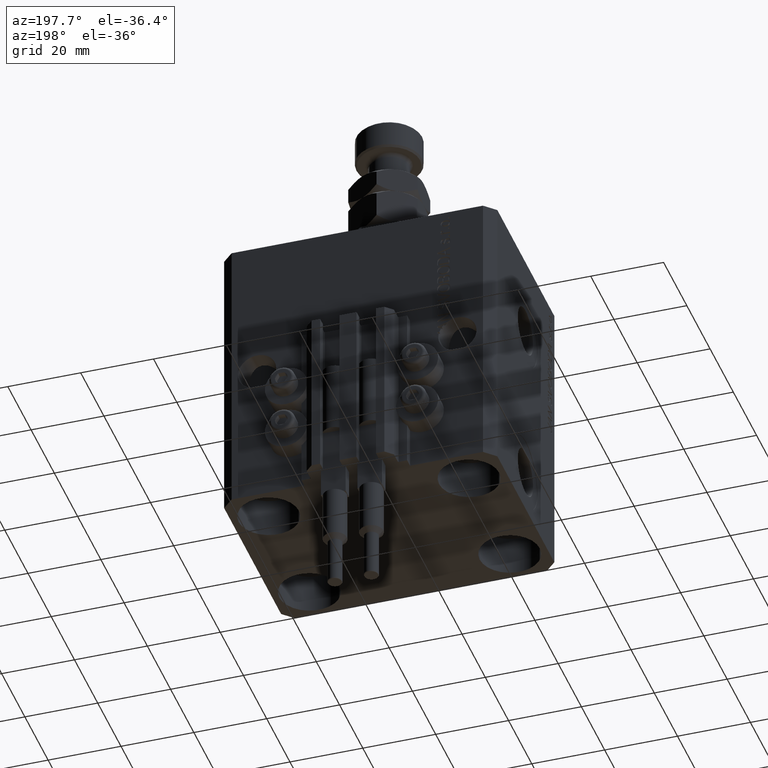
[diagram: clean part render]
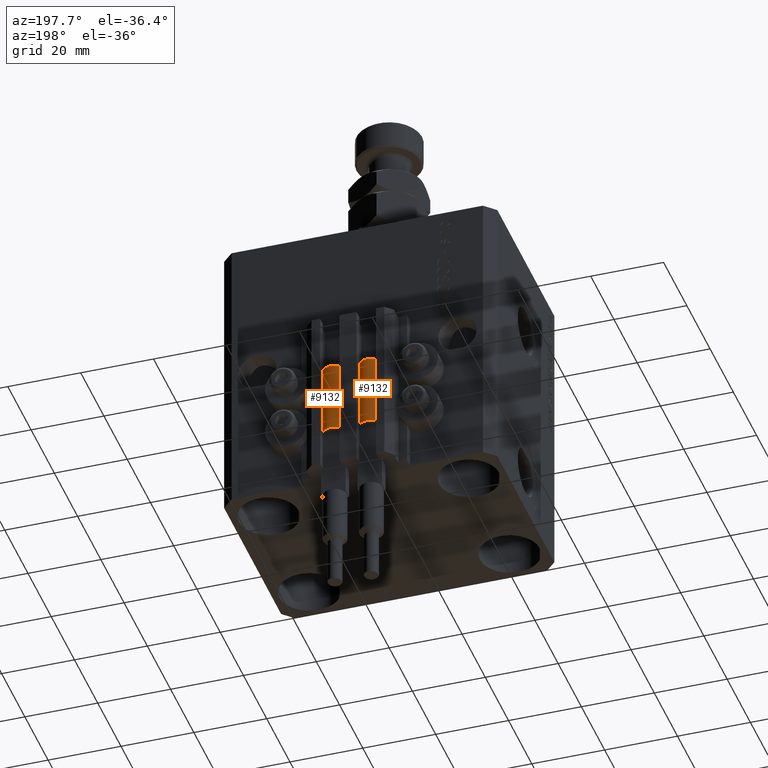
[diagram: same view with one multi-face feature highlighted, each face labeled with its STEP entity id]
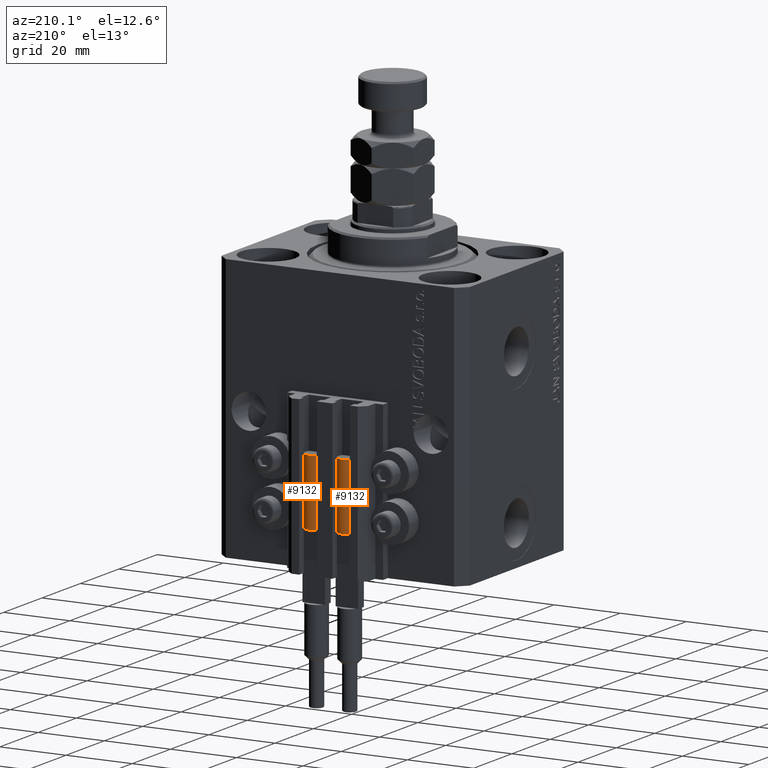
[diagram: same view with one multi-face feature highlighted, each face labeled with its STEP entity id]
A machine part, auxiliary view. The highlighted faces form ONE feature: a constant-radius fillet chain: 2 tangent blend faces with common blend radius 3.4 mm. The faces share edges in the B-rep.
A second angle (auxiliary view) of the same feature is appended — it is thin or edge-on in the first view.
Their STEP definitions:
[1] entity #9132 (Cylinder):
#56 = AXIS2_PLACEMENT_3D ( 'NONE', #34535, #4121, #15334 ) ;
#496 = CIRCLE ( 'NONE', #44956, 3.400000000000000355 ) ;
#931 = ORIENTED_EDGE ( 'NONE', *, *, #42900, .F. ) ;
#1344 = DIRECTION ( 'NONE',  ( -0.000000000000000000, -0.000000000000000000, -1.000000000000000000 ) ) ;
#3049 = VECTOR ( 'NONE', #1344, 1000.000000000000000 ) ;
#3705 = VERTEX_POINT ( 'NONE', #28046 ) ;
#4121 = DIRECTION ( 'NONE',  ( 0.000000000000000000, 0.000000000000000000, 1.000000000000000000 ) ) ;
#4370 = LINE ( 'NONE', #23068, #12833 ) ;
#6586 = DIRECTION ( 'NONE',  ( 0.000000000000000000, 0.000000000000000000, 1.000000000000000000 ) ) ;
#7961 = DIRECTION ( 'NONE',  ( 0.000000000000000000, 0.000000000000000000, 1.000000000000000000 ) ) ;
#8709 = EDGE_CURVE ( 'NONE', #47567, #20555, #16308, .T. ) ;
#9132 = ADVANCED_FACE ( 'NONE', ( #20714 ), #20957, .T. ) ;
#9515 = CARTESIAN_POINT ( 'NONE',  ( 0.000000000000000000, 0.000000000000000000, 20.00000000000000000 ) ) ;
#10196 = DIRECTION ( 'NONE',  ( 1.000000000000000000, 0.000000000000000000, 0.000000000000000000 ) ) ;
#11370 = DIRECTION ( 'NONE',  ( -0.000000000000000000, -0.000000000000000000, -1.000000000000000000 ) ) ;
#11441 = CARTESIAN_POINT ( 'NONE',  ( 0.000000000000000000, 0.000000000000000000, 20.00000000000000000 ) ) ;
#12797 = CIRCLE ( 'NONE', #56, 3.400000000000000355 ) ;
#12833 = VECTOR ( 'NONE', #11370, 1000.000000000000000 ) ;
#13338 = CARTESIAN_POINT ( 'NONE',  ( -3.400000000000000355, 0.000000000000000000, 0.000000000000000000 ) ) ;
#15334 = DIRECTION ( 'NONE',  ( 1.000000000000000000, 0.000000000000000000, 0.000000000000000000 ) ) ;
#16308 = LINE ( 'NONE', #35513, #3049 ) ;
#16331 = CARTESIAN_POINT ( 'NONE',  ( 3.400000000000000355, 4.163799117101001052E-16, 0.000000000000000000 ) ) ;
#16573 = AXIS2_PLACEMENT_3D ( 'NONE', #9515, #16982, #40419 ) ;
#16982 = DIRECTION ( 'NONE',  ( -0.000000000000000000, -0.000000000000000000, -1.000000000000000000 ) ) ;
#17408 = CARTESIAN_POINT ( 'NONE',  ( -3.051229260478471428, 1.500000000000000000, 20.00000000000000000 ) ) ;
#18664 = DIRECTION ( 'NONE',  ( 1.000000000000000000, 0.000000000000000000, 0.000000000000000000 ) ) ;
#20555 = VERTEX_POINT ( 'NONE', #16331 ) ;
#20714 = FACE_OUTER_BOUND ( 'NONE', #37136, .T. ) ;
#20957 = CYLINDRICAL_SURFACE ( 'NONE', #16573, 3.400000000000000355 ) ;
#21775 = CARTESIAN_POINT ( 'NONE',  ( 0.000000000000000000, 0.000000000000000000, 0.000000000000000000 ) ) ;
#23068 = CARTESIAN_POINT ( 'NONE',  ( -3.400000000000000355, 0.000000000000000000, 20.00000000000000000 ) ) ;
#23548 = CARTESIAN_POINT ( 'NONE',  ( 3.400000000000000355, 0.000000000000000000, 20.00000000000000000 ) ) ;
#24472 = VERTEX_POINT ( 'NONE', #30054 ) ;
#24473 = CIRCLE ( 'NONE', #39597, 3.400000000000000355 ) ;
#24866 = EDGE_CURVE ( 'NONE', #34770, #24472, #25114, .T. ) ;
#25114 = CIRCLE ( 'NONE', #37855, 3.400000000000000355 ) ;
#26669 = EDGE_CURVE ( 'NONE', #20555, #30397, #496, .T. ) ;
#28046 = CARTESIAN_POINT ( 'NONE',  ( 3.051229260478471428, 1.500000000000000000, 20.00000000000000000 ) ) ;
#28730 = ORIENTED_EDGE ( 'NONE', *, *, #26669, .T. ) ;
#30054 = CARTESIAN_POINT ( 'NONE',  ( -3.399999999999999467, -4.915049848600952119E-16, 20.00000000000000000 ) ) ;
#30397 = VERTEX_POINT ( 'NONE', #13338 ) ;
#32897 = ORIENTED_EDGE ( 'NONE', *, *, #33117, .F. ) ;
#33117 = EDGE_CURVE ( 'NONE', #3705, #34770, #24473, .T. ) ;
#33375 = CARTESIAN_POINT ( 'NONE',  ( 0.000000000000000000, 0.000000000000000000, 20.00000000000000000 ) ) ;
#34535 = CARTESIAN_POINT ( 'NONE',  ( 0.000000000000000000, 0.000000000000000000, 20.00000000000000000 ) ) ;
#34770 = VERTEX_POINT ( 'NONE', #17408 ) ;
#35513 = CARTESIAN_POINT ( 'NONE',  ( 3.400000000000000355, 4.163799117101001052E-16, 20.00000000000000000 ) ) ;
#37136 = EDGE_LOOP ( 'NONE', ( #931, #49272, #28730, #42264, #41675, #32897 ) ) ;
#37855 = AXIS2_PLACEMENT_3D ( 'NONE', #33375, #41110, #10196 ) ;
#39597 = AXIS2_PLACEMENT_3D ( 'NONE', #11441, #7961, #18664 ) ;
#40419 = DIRECTION ( 'NONE',  ( -1.000000000000000000, 0.000000000000000000, 0.000000000000000000 ) ) ;
#41110 = DIRECTION ( 'NONE',  ( 0.000000000000000000, 0.000000000000000000, 1.000000000000000000 ) ) ;
#41675 = ORIENTED_EDGE ( 'NONE', *, *, #24866, .F. ) ;
#42264 = ORIENTED_EDGE ( 'NONE', *, *, #44593, .F. ) ;
#42900 = EDGE_CURVE ( 'NONE', #47567, #3705, #12797, .T. ) ;
#44593 = EDGE_CURVE ( 'NONE', #24472, #30397, #4370, .T. ) ;
#44956 = AXIS2_PLACEMENT_3D ( 'NONE', #21775, #6586, #47474 ) ;
#47474 = DIRECTION ( 'NONE',  ( 1.000000000000000000, 0.000000000000000000, 0.000000000000000000 ) ) ;
#47567 = VERTEX_POINT ( 'NONE', #23548 ) ;
#49272 = ORIENTED_EDGE ( 'NONE', *, *, #8709, .T. ) ;
[2] entity #9132 (Cylinder):
#56 = AXIS2_PLACEMENT_3D ( 'NONE', #34535, #4121, #15334 ) ;
#496 = CIRCLE ( 'NONE', #44956, 3.400000000000000355 ) ;
#931 = ORIENTED_EDGE ( 'NONE', *, *, #42900, .F. ) ;
#1344 = DIRECTION ( 'NONE',  ( -0.000000000000000000, -0.000000000000000000, -1.000000000000000000 ) ) ;
#3049 = VECTOR ( 'NONE', #1344, 1000.000000000000000 ) ;
#3705 = VERTEX_POINT ( 'NONE', #28046 ) ;
#4121 = DIRECTION ( 'NONE',  ( 0.000000000000000000, 0.000000000000000000, 1.000000000000000000 ) ) ;
#4370 = LINE ( 'NONE', #23068, #12833 ) ;
#6586 = DIRECTION ( 'NONE',  ( 0.000000000000000000, 0.000000000000000000, 1.000000000000000000 ) ) ;
#7961 = DIRECTION ( 'NONE',  ( 0.000000000000000000, 0.000000000000000000, 1.000000000000000000 ) ) ;
#8709 = EDGE_CURVE ( 'NONE', #47567, #20555, #16308, .T. ) ;
#9132 = ADVANCED_FACE ( 'NONE', ( #20714 ), #20957, .T. ) ;
#9515 = CARTESIAN_POINT ( 'NONE',  ( 0.000000000000000000, 0.000000000000000000, 20.00000000000000000 ) ) ;
#10196 = DIRECTION ( 'NONE',  ( 1.000000000000000000, 0.000000000000000000, 0.000000000000000000 ) ) ;
#11370 = DIRECTION ( 'NONE',  ( -0.000000000000000000, -0.000000000000000000, -1.000000000000000000 ) ) ;
#11441 = CARTESIAN_POINT ( 'NONE',  ( 0.000000000000000000, 0.000000000000000000, 20.00000000000000000 ) ) ;
#12797 = CIRCLE ( 'NONE', #56, 3.400000000000000355 ) ;
#12833 = VECTOR ( 'NONE', #11370, 1000.000000000000000 ) ;
#13338 = CARTESIAN_POINT ( 'NONE',  ( -3.400000000000000355, 0.000000000000000000, 0.000000000000000000 ) ) ;
#15334 = DIRECTION ( 'NONE',  ( 1.000000000000000000, 0.000000000000000000, 0.000000000000000000 ) ) ;
#16308 = LINE ( 'NONE', #35513, #3049 ) ;
#16331 = CARTESIAN_POINT ( 'NONE',  ( 3.400000000000000355, 4.163799117101001052E-16, 0.000000000000000000 ) ) ;
#16573 = AXIS2_PLACEMENT_3D ( 'NONE', #9515, #16982, #40419 ) ;
#16982 = DIRECTION ( 'NONE',  ( -0.000000000000000000, -0.000000000000000000, -1.000000000000000000 ) ) ;
#17408 = CARTESIAN_POINT ( 'NONE',  ( -3.051229260478471428, 1.500000000000000000, 20.00000000000000000 ) ) ;
#18664 = DIRECTION ( 'NONE',  ( 1.000000000000000000, 0.000000000000000000, 0.000000000000000000 ) ) ;
#20555 = VERTEX_POINT ( 'NONE', #16331 ) ;
#20714 = FACE_OUTER_BOUND ( 'NONE', #37136, .T. ) ;
#20957 = CYLINDRICAL_SURFACE ( 'NONE', #16573, 3.400000000000000355 ) ;
#21775 = CARTESIAN_POINT ( 'NONE',  ( 0.000000000000000000, 0.000000000000000000, 0.000000000000000000 ) ) ;
#23068 = CARTESIAN_POINT ( 'NONE',  ( -3.400000000000000355, 0.000000000000000000, 20.00000000000000000 ) ) ;
#23548 = CARTESIAN_POINT ( 'NONE',  ( 3.400000000000000355, 0.000000000000000000, 20.00000000000000000 ) ) ;
#24472 = VERTEX_POINT ( 'NONE', #30054 ) ;
#24473 = CIRCLE ( 'NONE', #39597, 3.400000000000000355 ) ;
#24866 = EDGE_CURVE ( 'NONE', #34770, #24472, #25114, .T. ) ;
#25114 = CIRCLE ( 'NONE', #37855, 3.400000000000000355 ) ;
#26669 = EDGE_CURVE ( 'NONE', #20555, #30397, #496, .T. ) ;
#28046 = CARTESIAN_POINT ( 'NONE',  ( 3.051229260478471428, 1.500000000000000000, 20.00000000000000000 ) ) ;
#28730 = ORIENTED_EDGE ( 'NONE', *, *, #26669, .T. ) ;
#30054 = CARTESIAN_POINT ( 'NONE',  ( -3.399999999999999467, -4.915049848600952119E-16, 20.00000000000000000 ) ) ;
#30397 = VERTEX_POINT ( 'NONE', #13338 ) ;
#32897 = ORIENTED_EDGE ( 'NONE', *, *, #33117, .F. ) ;
#33117 = EDGE_CURVE ( 'NONE', #3705, #34770, #24473, .T. ) ;
#33375 = CARTESIAN_POINT ( 'NONE',  ( 0.000000000000000000, 0.000000000000000000, 20.00000000000000000 ) ) ;
#34535 = CARTESIAN_POINT ( 'NONE',  ( 0.000000000000000000, 0.000000000000000000, 20.00000000000000000 ) ) ;
#34770 = VERTEX_POINT ( 'NONE', #17408 ) ;
#35513 = CARTESIAN_POINT ( 'NONE',  ( 3.400000000000000355, 4.163799117101001052E-16, 20.00000000000000000 ) ) ;
#37136 = EDGE_LOOP ( 'NONE', ( #931, #49272, #28730, #42264, #41675, #32897 ) ) ;
#37855 = AXIS2_PLACEMENT_3D ( 'NONE', #33375, #41110, #10196 ) ;
#39597 = AXIS2_PLACEMENT_3D ( 'NONE', #11441, #7961, #18664 ) ;
#40419 = DIRECTION ( 'NONE',  ( -1.000000000000000000, 0.000000000000000000, 0.000000000000000000 ) ) ;
#41110 = DIRECTION ( 'NONE',  ( 0.000000000000000000, 0.000000000000000000, 1.000000000000000000 ) ) ;
#41675 = ORIENTED_EDGE ( 'NONE', *, *, #24866, .F. ) ;
#42264 = ORIENTED_EDGE ( 'NONE', *, *, #44593, .F. ) ;
#42900 = EDGE_CURVE ( 'NONE', #47567, #3705, #12797, .T. ) ;
#44593 = EDGE_CURVE ( 'NONE', #24472, #30397, #4370, .T. ) ;
#44956 = AXIS2_PLACEMENT_3D ( 'NONE', #21775, #6586, #47474 ) ;
#47474 = DIRECTION ( 'NONE',  ( 1.000000000000000000, 0.000000000000000000, 0.000000000000000000 ) ) ;
#47567 = VERTEX_POINT ( 'NONE', #23548 ) ;
#49272 = ORIENTED_EDGE ( 'NONE', *, *, #8709, .T. ) ;